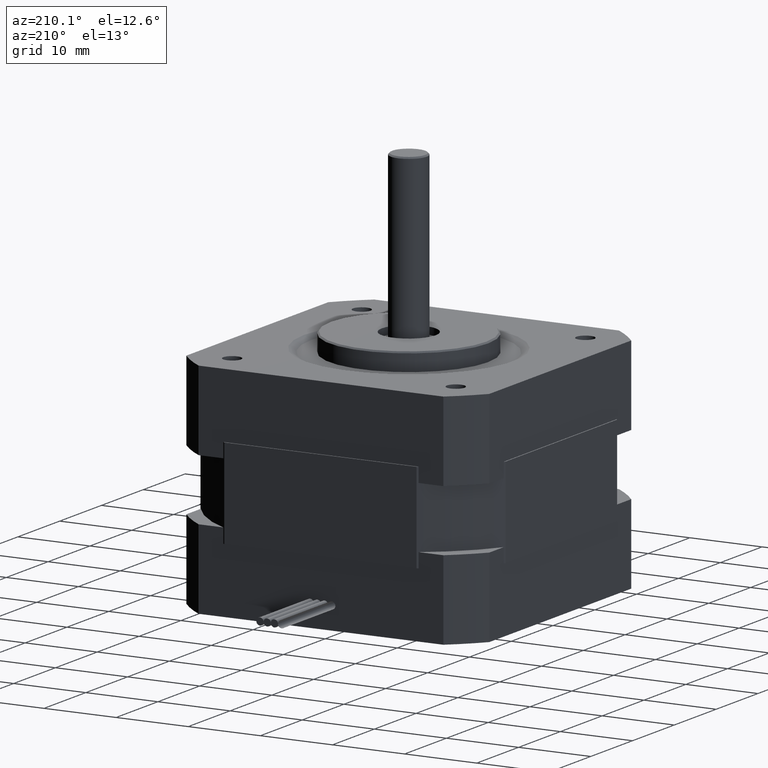
[diagram: clean part render]
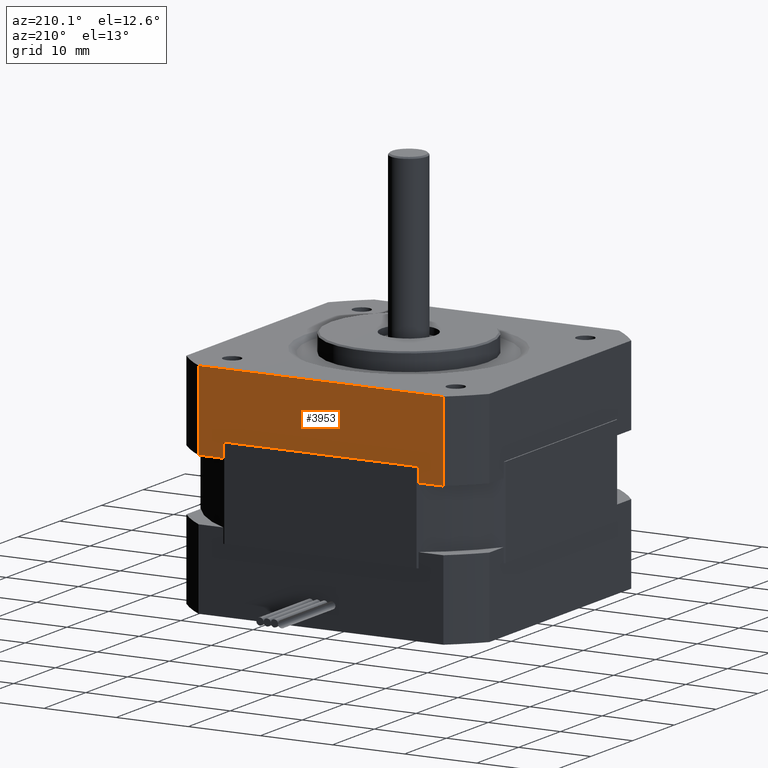
[diagram: same view with one face highlighted and labeled with its STEP entity id]
A machine part, auxiliary view. The second image highlights one B-rep face of the part: STEP entity #3953.
In plain terms, the highlighted planar face has unit normal (-0, 1, -0).
Its self-contained STEP definition (entity closure, byte-faithful):
#121=LINE('',#6016,#369);
#123=LINE('',#6022,#371);
#129=LINE('',#6030,#377);
#135=LINE('',#6045,#383);
#137=LINE('',#6052,#385);
#141=LINE('',#6065,#389);
#142=LINE('',#6067,#390);
#143=LINE('',#6068,#391);
#369=VECTOR('',#4760,2.);
#371=VECTOR('',#4764,2.);
#377=VECTOR('',#4772,26.);
#383=VECTOR('',#4784,3.97056274847712);
#385=VECTOR('',#4792,3.97056274847716);
#389=VECTOR('',#4806,11.);
#390=VECTOR('',#4807,33.9411254969543);
#391=VECTOR('',#4808,11.);
#616=PLANE('',#4237);
#883=FACE_OUTER_BOUND('',#1143,.T.);
#1143=EDGE_LOOP('',(#2696,#2697,#2698,#2699,#2700,#2701,#2702,#2703));
#1704=VERTEX_POINT('',#6010);
#1706=VERTEX_POINT('',#6014);
#1707=VERTEX_POINT('',#6018);
#1709=VERTEX_POINT('',#6021);
#1716=VERTEX_POINT('',#6044);
#1718=VERTEX_POINT('',#6050);
#1722=VERTEX_POINT('',#6064);
#1723=VERTEX_POINT('',#6066);
#2094=EDGE_CURVE('',#1704,#1706,#121,.T.);
#2096=EDGE_CURVE('',#1709,#1707,#123,.T.);
#2102=EDGE_CURVE('',#1707,#1704,#129,.T.);
#2109=EDGE_CURVE('',#1716,#1709,#135,.T.);
#2113=EDGE_CURVE('',#1706,#1718,#137,.T.);
#2119=EDGE_CURVE('',#1718,#1722,#141,.T.);
#2120=EDGE_CURVE('',#1722,#1723,#142,.T.);
#2121=EDGE_CURVE('',#1716,#1723,#143,.T.);
#2696=ORIENTED_EDGE('',*,*,#2096,.T.);
#2697=ORIENTED_EDGE('',*,*,#2102,.T.);
#2698=ORIENTED_EDGE('',*,*,#2094,.T.);
#2699=ORIENTED_EDGE('',*,*,#2113,.T.);
#2700=ORIENTED_EDGE('',*,*,#2119,.T.);
#2701=ORIENTED_EDGE('',*,*,#2120,.T.);
#2702=ORIENTED_EDGE('',*,*,#2121,.F.);
#2703=ORIENTED_EDGE('',*,*,#2109,.T.);
#3953=ADVANCED_FACE('',(#883),#616,.T.);
#4237=AXIS2_PLACEMENT_3D('',#6063,#4804,#4805);
#4760=DIRECTION('',(8.74300631892311E-16,2.59037577520082E-32,-1.));
#4764=DIRECTION('',(-8.74300631892311E-16,-2.59037577520082E-32,1.));
#4772=DIRECTION('',(-1.,-7.54604712049907E-17,-8.74300631892311E-16));
#4784=DIRECTION('',(-1.,-7.54604712049907E-17,-8.74300631892311E-16));
#4792=DIRECTION('',(-1.,-7.54604712049908E-17,-8.74300631892311E-16));
#4804=DIRECTION('center_axis',(-7.54604712049907E-17,1.,-4.00713799054067E-32));
#4805=DIRECTION('ref_axis',(-7.105427357601E-16,0.,1.));
#4806=DIRECTION('',(-8.7430063189231E-16,-2.59037577520082E-32,1.));
#4807=DIRECTION('',(1.,7.54604712049907E-17,8.74300631892311E-16));
#4808=DIRECTION('',(-8.7430063189231E-16,-2.59037577520082E-32,1.));
#6010=CARTESIAN_POINT('',(-13.,21.,-3.00000000000013));
#6014=CARTESIAN_POINT('',(-13.,21.,-5.00000000000013));
#6016=CARTESIAN_POINT('',(-13.,21.,-3.00000000000013));
#6018=CARTESIAN_POINT('',(13.,21.,-3.0000000000001));
#6021=CARTESIAN_POINT('',(13.,21.,-5.0000000000001));
#6022=CARTESIAN_POINT('',(13.,21.,-5.0000000000001));
#6030=CARTESIAN_POINT('',(13.,21.,-3.0000000000001));
#6044=CARTESIAN_POINT('',(16.9705627484771,21.,-5.0000000000001));
#6045=CARTESIAN_POINT('',(16.9705627484771,21.,-5.0000000000001));
#6050=CARTESIAN_POINT('',(-16.9705627484771,21.,-5.00000000000013));
#6052=CARTESIAN_POINT('',(-13.,21.,-5.00000000000013));
#6063=CARTESIAN_POINT('Origin',(-16.9705627484771,21.,-5.00000000000013));
#6064=CARTESIAN_POINT('',(-16.9705627484772,21.,5.99999999999987));
#6065=CARTESIAN_POINT('',(-16.9705627484771,21.,-5.00000000000013));
#6066=CARTESIAN_POINT('',(16.9705627484771,21.,5.9999999999999));
#6067=CARTESIAN_POINT('',(-16.9705627484772,21.,5.99999999999987));
#6068=CARTESIAN_POINT('',(16.9705627484771,21.,-5.0000000000001));